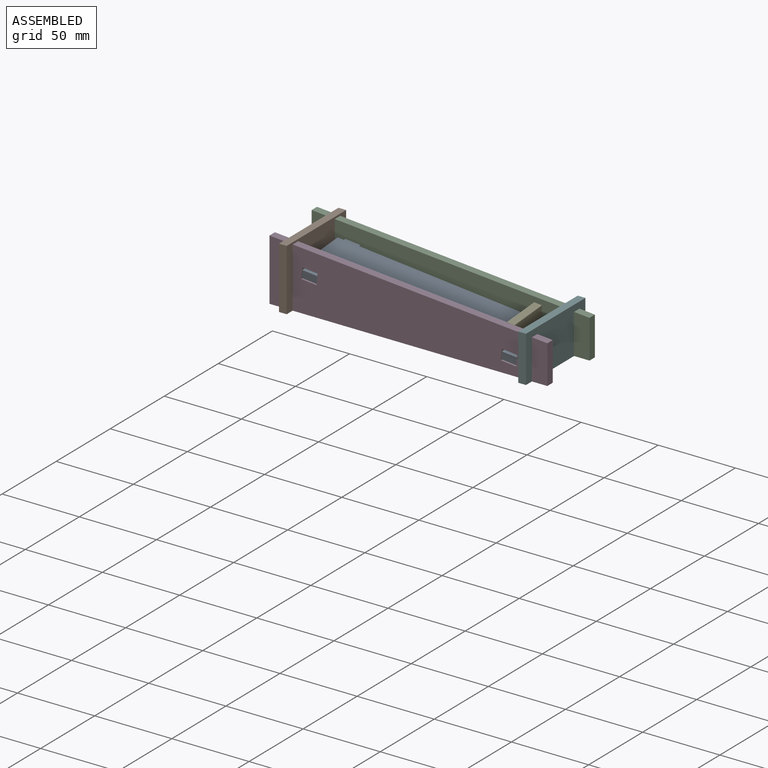
[diagram: assembled view]
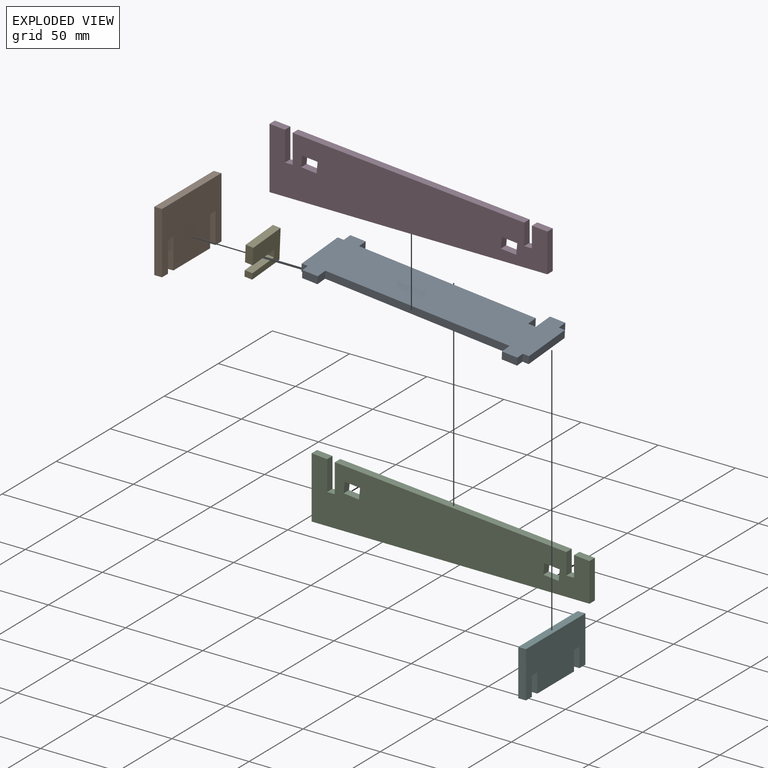
[diagram: exploded view]
GUIDED TOUR — MATED ASSEMBLY (Onshape document 521a86cabb301fe532c7ba72, AutoMate assembly 521a86cabb301fe532c7ba72_5a490117518f062a6a4dbaca_c5bd7c6d9e7b983213a97659_default)

This assembly has 6 components, labeled P0..P5 below (a component is one placed occurrence of a part; the same part can appear more than once), held together by 4 mates. A mate is a constraint between two components; its type names the relative motion it leaves free:
  FASTENED — locks the two components together rigidly (no relative motion).
Axis/direction vectors are unit vectors and 'through' points are millimeter coordinates, both in the assembly's world frame.

MATES
  1. FASTENED "Fastened 1": P3 <-> P1, direction (0.000, 0.000, 1.000) through (-77.50, 0.00, 20.00) mm
  2. FASTENED "Fastened 4": P4 <-> P0, direction (-0.009, -0.996, -0.087) through (57.91, 28.98, 12.65) mm
  3. FASTENED "Fastened 3": P5 <-> P2, direction (0.000, 0.000, -1.000) through (77.50, 39.00, 12.50) mm
  4. FASTENED "Fastened 2": P1 <-> P2, direction (0.000, 0.000, -1.000) through (-77.50, 39.00, 20.00) mm

ASSEMBLY ORDER
  1. P0 — the base component [order heuristic]
  2. P2 — core [order heuristic]
  3. P3 [order verified]
  4. P4 [order verified]
  5. P5 [order verified]
  6. P1 [order verified]
Order-tag legend:
  [order verified] — this step's position reverses a verified removal order: the component was checked to insert without passing through the ones already placed.
  [order heuristic] — the first 2 components form the assembly's core: parts whose collision-free extraction could not be verified, listed in mate-graph order.

Of the 6 components, 6 carry the full construction recipe — the FeatureScript program that regenerates the part's solid from scratch; the rest are supplied as boundary geometry only.
Each toured component is shown spotlighted twice — in the assembled view, then in the exploded view, where a leader line traces a displaced component back to its assembled socket (saturated green if recipe-attached, orange if geometry-only; every other component desaturated gray) — followed by its recipe or geometry summary and the mates that hold it.
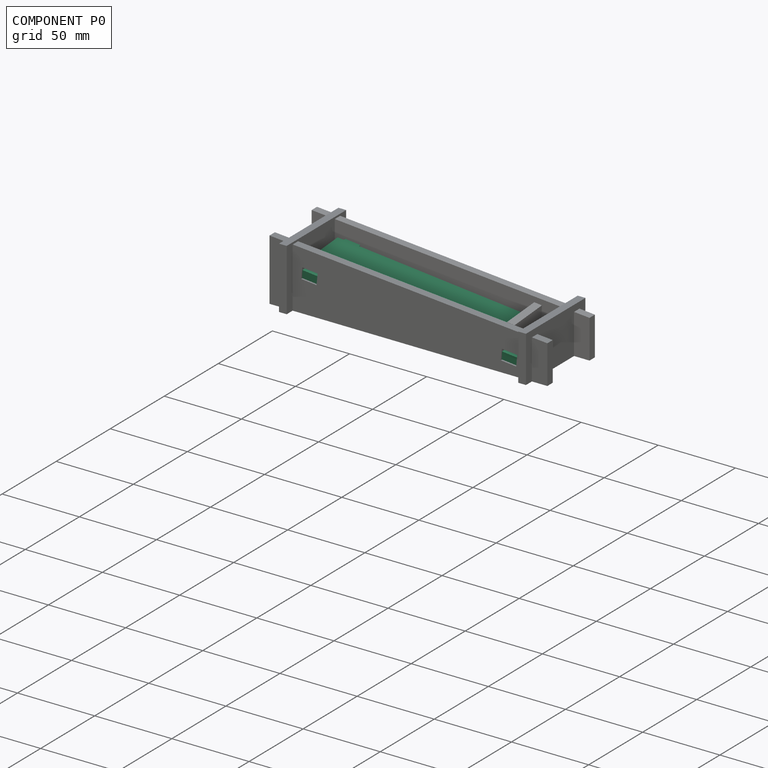
[diagram: component P0 — assembled]
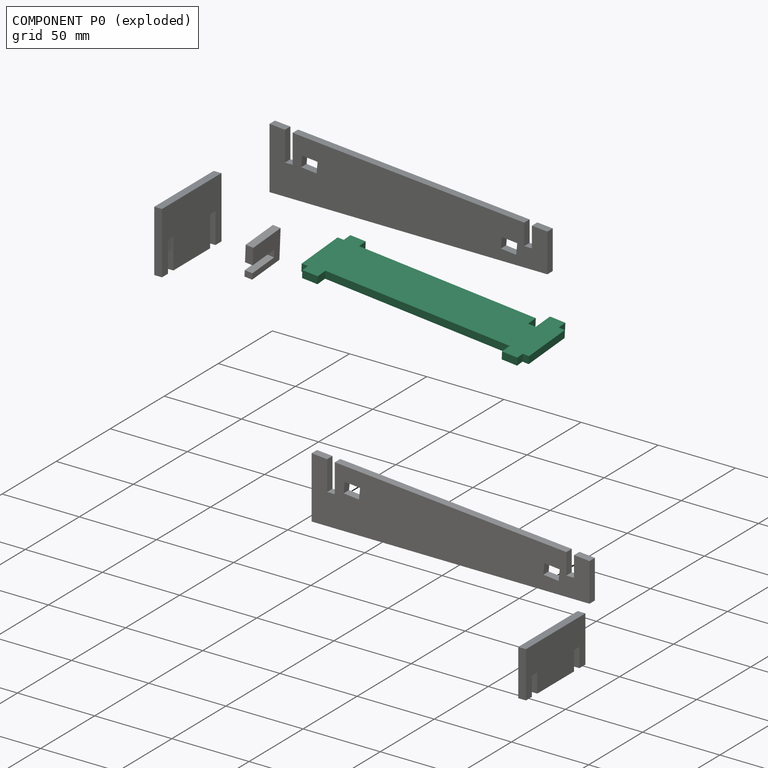
[diagram: component P0 — exploded]
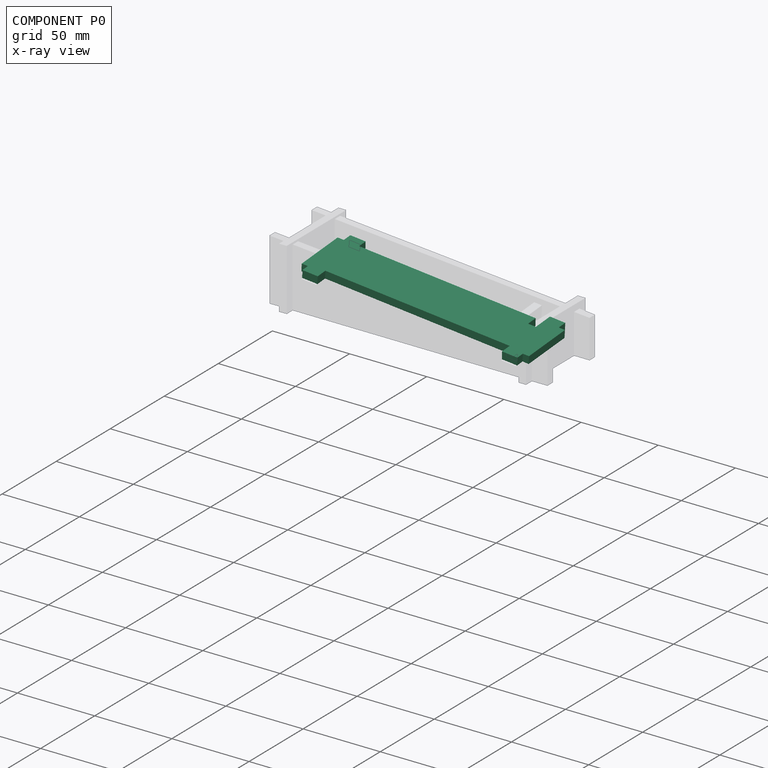
[diagram: component P0 — x-ray view]
COMPONENT P0 — recipe-attached (CADFS 00942265, mesh-verified: the recipe's output STEP matches this component's geometry to below the mesh-comparison resolution (tessellation chordal tolerance ~0.232 mm)).
Held by: FASTENED mate "Fastened 4" to P4.
Construction recipe (FeatureScript — the CAD program that rebuilds this solid; sketch coordinates are in the units given by the * unit suffixes, e.g. mm):

FeatureScript 1540;
import(path : "onshape/std/geometry.fs", version : "1540.0");
import(path : "onshape/std/common.fs", version : "1540.0");
const mm = millimeter;
const VERTEX = EntityType.VERTEX;
const EDGE = EntityType.EDGE;
const FACE = EntityType.FACE;
const BODY = EntityType.BODY;
function v(x, y){return vector(x, y);}
function OD(order){return orderDisambiguation(order);}
function OSD(set){return originalSetDisambiguation(set);}
function TD(topology){return topologyDisambiguation(topology);}
function TDD(query){return trueDependencyDisambiguation(query);}
function sQuery(a, b, c) {return sketchEntityQuery(a, b, c);}

annotation { "Feature Type Name" : "Feature", "Feature Type Description" : "" }
export const myFeature = defineFeature(function(context is Context, id is Id, definition is map)
    precondition{}
    {
        {
            var Q0;
            Q0=qCreatedBy(makeId("Top.planeOp"),FACE);
            var sketch = newSketch(context, id + "F0", { "sketchPlane" : qUnion([Q0])});
            skLineSegment(sketch, "E0.bottom", {"start": v(-70, -15) * mm, "end": v(70, -15) * mm});
            skLineSegment(sketch, "E0.top", {"start": v(-70, 15) * mm, "end": v(70, 15) * mm});
            skLineSegment(sketch, "E0.left", {"start": v(-70, -15) * mm, "end": v(-70, 15) * mm});
            skLineSegment(sketch, "E0.right", {"start": v(70, -15) * mm, "end": v(70, 15) * mm});
            skSolve(sketch);
        }
        {
            var Q0;
            Q0=makeQuery(id+"F0.imprint","IMPRINT",FACE,{"disambiguationData":[TD([[makeQuery(id+"F0.imprint","IMPRINT",EDGE,{"derivedFrom":sQuery(id+"F0.wireOp",EDGE,"E0.bottom")}),1.0]])]});
            extrude(context, id + "F1", {"entities" : qUnion([Q0]), "depth" : 5 * mm, "offsetDistance" : 25 * mm});
        }
        {
            var Q0;
            Q0=makeQuery(id+"F1.opExtrude","CAP_FACE",FACE,{"disambiguationData":[OSD([sQuery(id+"F0.wireOp",EDGE,"E0.bottom"),sQuery(id+"F0.wireOp",EDGE,"E0.top"),sQuery(id+"F0.wireOp",EDGE,"E0.left"),sQuery(id+"F0.wireOp",EDGE,"E0.right")])],"isStart":false});
            var sketch = newSketch(context, id + "F2", { "sketchPlane" : qUnion([Q0])});
            skLineSegment(sketch, "E1.bottom", {"start": v(-70, 15) * mm, "end": v(-60, 15) * mm});
            skLineSegment(sketch, "E1.top", {"start": v(-70, 20) * mm, "end": v(-60, 20) * mm});
            skLineSegment(sketch, "E1.left", {"start": v(-70, 15) * mm, "end": v(-70, 20) * mm});
            skLineSegment(sketch, "E1.right", {"start": v(-60, 15) * mm, "end": v(-60, 20) * mm});
            skLineSegment(sketch, "E2.bottom", {"start": v(60, 15) * mm, "end": v(70, 15) * mm});
            skLineSegment(sketch, "E2.top", {"start": v(60, 20) * mm, "end": v(70, 20) * mm});
            skLineSegment(sketch, "E2.left", {"start": v(60, 15) * mm, "end": v(60, 20) * mm});
            skLineSegment(sketch, "E2.right", {"start": v(70, 15) * mm, "end": v(70, 20) * mm});
            skLineSegment(sketch, "E3.bottom", {"start": v(-70, -24) * mm, "end": v(-60, -24) * mm});
            skLineSegment(sketch, "E3.top", {"start": v(-70, -15) * mm, "end": v(-60, -15) * mm});
            skLineSegment(sketch, "E3.left", {"start": v(-70, -24) * mm, "end": v(-70, -15) * mm});
            skLineSegment(sketch, "E3.right", {"start": v(-60, -24) * mm, "end": v(-60, -15) * mm});
            skLineSegment(sketch, "E4.bottom", {"start": v(60, -24) * mm, "end": v(70, -24) * mm});
            skLineSegment(sketch, "E4.top", {"start": v(60, -15) * mm, "end": v(70, -15) * mm});
            skLineSegment(sketch, "E4.left", {"start": v(60, -24) * mm, "end": v(60, -15) * mm});
            skLineSegment(sketch, "E4.right", {"start": v(70, -24) * mm, "end": v(70, -15) * mm});
            skSolve(sketch);
        }
        {
            var Q0;
            Q0=makeQuery(id+"F2.imprint","IMPRINT",FACE,{"disambiguationData":[TD([[makeQuery(id+"F2.imprint","IMPRINT",EDGE,{"derivedFrom":sQuery(id+"F2.wireOp",EDGE,"E2.bottom")}),1.0]])]});
            var Q1;
            Q1=makeQuery(id+"F2.imprint","IMPRINT",FACE,{"disambiguationData":[TD([[makeQuery(id+"F2.imprint","IMPRINT",EDGE,{"derivedFrom":sQuery(id+"F2.wireOp",EDGE,"E1.bottom")}),1.0]])]});
            var Q2;
            Q2=makeQuery(id+"F2.imprint","IMPRINT",FACE,{"disambiguationData":[TD([[makeQuery(id+"F2.imprint","IMPRINT",EDGE,{"derivedFrom":sQuery(id+"F2.wireOp",EDGE,"E3.bottom")}),1.0]])]});
            var Q3;
            Q3=makeQuery(id+"F2.imprint","IMPRINT",FACE,{"disambiguationData":[TD([[makeQuery(id+"F2.imprint","IMPRINT",EDGE,{"derivedFrom":sQuery(id+"F2.wireOp",EDGE,"E4.bottom")}),1.0]])]});
            extrude(context, id + "F3", {"entities" : qUnion([Q0, Q1, Q2, Q3]), "oppositeDirection" : true, "depth" : 5 * mm, "offsetDistance" : 25 * mm});
        }
        {
            var Q0;
            Q0=makeQuery(id+"F3.opExtrude","SWEPT_BODY",BODY,{"disambiguationData":[OSD([sQuery(id+"F2.wireOp",EDGE,"E1.bottom"),sQuery(id+"F2.wireOp",EDGE,"E1.top"),sQuery(id+"F2.wireOp",EDGE,"E1.left"),sQuery(id+"F2.wireOp",EDGE,"E1.right")])]});
            var Q1;
            Q1=makeQuery(id+"F3.opExtrude","SWEPT_BODY",BODY,{"disambiguationData":[OSD([sQuery(id+"F2.wireOp",EDGE,"E2.bottom"),sQuery(id+"F2.wireOp",EDGE,"E2.top"),sQuery(id+"F2.wireOp",EDGE,"E2.left"),sQuery(id+"F2.wireOp",EDGE,"E2.right")])]});
            var Q2;
            Q2=makeQuery(id+"F3.opExtrude","SWEPT_BODY",BODY,{"disambiguationData":[OSD([sQuery(id+"F2.wireOp",EDGE,"E3.bottom"),sQuery(id+"F2.wireOp",EDGE,"E3.top"),sQuery(id+"F2.wireOp",EDGE,"E3.left"),sQuery(id+"F2.wireOp",EDGE,"E3.right")])]});
            var Q3;
            Q3=makeQuery(id+"F3.opExtrude","SWEPT_BODY",BODY,{"disambiguationData":[OSD([sQuery(id+"F2.wireOp",EDGE,"E4.bottom"),sQuery(id+"F2.wireOp",EDGE,"E4.top"),sQuery(id+"F2.wireOp",EDGE,"E4.left"),sQuery(id+"F2.wireOp",EDGE,"E4.right")])]});
            var Q4;
            Q4=makeQuery(id+"F1.opExtrude","SWEPT_BODY",BODY,{"disambiguationData":[OSD([sQuery(id+"F0.wireOp",EDGE,"E0.bottom"),sQuery(id+"F0.wireOp",EDGE,"E0.top"),sQuery(id+"F0.wireOp",EDGE,"E0.left"),sQuery(id+"F0.wireOp",EDGE,"E0.right")])]});
            booleanBodies(context, id + "F4", {"operationType" : BooleanOperationType.UNION, "tools" : qUnion([Q0, Q1, Q2, Q3, Q4])});
        }
        {
            var Q0;
            Q0=makeQuery(id+"F4.opBoolean","MERGE",FACE,{"derivedFrom":[makeQuery(id+"F1.opExtrude","CAP_FACE",FACE,{"disambiguationData":[OSD([sQuery(id+"F0.wireOp",EDGE,"E0.bottom"),sQuery(id+"F0.wireOp",EDGE,"E0.top"),sQuery(id+"F0.wireOp",EDGE,"E0.left"),sQuery(id+"F0.wireOp",EDGE,"E0.right")])],"isStart":false}),makeQuery(id+"F3.opExtrude","CAP_FACE",FACE,{"disambiguationData":[OSD([sQuery(id+"F2.wireOp",EDGE,"E1.bottom"),sQuery(id+"F2.wireOp",EDGE,"E1.top"),sQuery(id+"F2.wireOp",EDGE,"E1.left"),sQuery(id+"F2.wireOp",EDGE,"E1.right")])],"isStart":true}),makeQuery(id+"F3.opExtrude","CAP_FACE",FACE,{"disambiguationData":[OSD([sQuery(id+"F2.wireOp",EDGE,"E2.bottom"),sQuery(id+"F2.wireOp",EDGE,"E2.top"),sQuery(id+"F2.wireOp",EDGE,"E2.left"),sQuery(id+"F2.wireOp",EDGE,"E2.right")])],"isStart":true}),makeQuery(id+"F3.opExtrude","CAP_FACE",FACE,{"disambiguationData":[OSD([sQuery(id+"F2.wireOp",EDGE,"E3.bottom"),sQuery(id+"F2.wireOp",EDGE,"E3.top"),sQuery(id+"F2.wireOp",EDGE,"E3.left"),sQuery(id+"F2.wireOp",EDGE,"E3.right")])],"isStart":true}),makeQuery(id+"F3.opExtrude","CAP_FACE",FACE,{"disambiguationData":[OSD([sQuery(id+"F2.wireOp",EDGE,"E4.bottom"),sQuery(id+"F2.wireOp",EDGE,"E4.top"),sQuery(id+"F2.wireOp",EDGE,"E4.left"),sQuery(id+"F2.wireOp",EDGE,"E4.right")])],"isStart":true})]});
            var sketch = newSketch(context, id + "F5", { "sketchPlane" : qUnion([Q0])});
            skLineSegment(sketch, "E5.bottom", {"start": v(55, 7) * mm, "end": v(60, 7) * mm});
            skLineSegment(sketch, "E5.top", {"start": v(55, 15) * mm, "end": v(60, 15) * mm});
            skLineSegment(sketch, "E5.left", {"start": v(55, 7) * mm, "end": v(55, 15) * mm});
            skLineSegment(sketch, "E5.right", {"start": v(60, 7) * mm, "end": v(60, 15) * mm});
            skSolve(sketch);
        }
        {
            var Q0;
            Q0=makeQuery(id+"F5.imprint","IMPRINT",FACE,{"disambiguationData":[TD([[makeQuery(id+"F5.imprint","IMPRINT",EDGE,{"derivedFrom":sQuery(id+"F5.wireOp",EDGE,"RuR1eCBN-IUNf-TQCT-UWBD-UVoxSlnhnZJr.bottom")}),1.0]])]});
            var Q1;
            Q1=makeQuery(id+"F5.imprint","IMPRINT",FACE,{"disambiguationData":[TD([[makeQuery(id+"F5.imprint","IMPRINT",EDGE,{"derivedFrom":sQuery(id+"F5.wireOp",EDGE,"E5.bottom")}),1.0]])]});
            extrude(context, id + "F6", {"entities" : qUnion([Q0, Q1]), "operationType" : NewBodyOperationType.REMOVE, "oppositeDirection" : true, "depth" : 25 * mm, "offsetDistance" : 25 * mm});
        }
        {
            var Q0;
            Q0=makeQuery(id+"F4.opBoolean","MERGE",FACE,{"derivedFrom":[makeQuery(id+"F1.opExtrude","CAP_FACE",FACE,{"disambiguationData":[OSD([sQuery(id+"F0.wireOp",EDGE,"E0.bottom"),sQuery(id+"F0.wireOp",EDGE,"E0.top"),sQuery(id+"F0.wireOp",EDGE,"E0.left"),sQuery(id+"F0.wireOp",EDGE,"E0.right")])],"isStart":false}),makeQuery(id+"F3.opExtrude","CAP_FACE",FACE,{"disambiguationData":[OSD([sQuery(id+"F2.wireOp",EDGE,"E1.bottom"),sQuery(id+"F2.wireOp",EDGE,"E1.top"),sQuery(id+"F2.wireOp",EDGE,"E1.left"),sQuery(id+"F2.wireOp",EDGE,"E1.right")])],"isStart":true}),makeQuery(id+"F3.opExtrude","CAP_FACE",FACE,{"disambiguationData":[OSD([sQuery(id+"F2.wireOp",EDGE,"E2.bottom"),sQuery(id+"F2.wireOp",EDGE,"E2.top"),sQuery(id+"F2.wireOp",EDGE,"E2.left"),sQuery(id+"F2.wireOp",EDGE,"E2.right")])],"isStart":true}),makeQuery(id+"F3.opExtrude","CAP_FACE",FACE,{"disambiguationData":[OSD([sQuery(id+"F2.wireOp",EDGE,"E3.bottom"),sQuery(id+"F2.wireOp",EDGE,"E3.top"),sQuery(id+"F2.wireOp",EDGE,"E3.left"),sQuery(id+"F2.wireOp",EDGE,"E3.right")])],"isStart":true}),makeQuery(id+"F3.opExtrude","CAP_FACE",FACE,{"disambiguationData":[OSD([sQuery(id+"F2.wireOp",EDGE,"E4.bottom"),sQuery(id+"F2.wireOp",EDGE,"E4.top"),sQuery(id+"F2.wireOp",EDGE,"E4.left"),sQuery(id+"F2.wireOp",EDGE,"E4.right")])],"isStart":true})]});
            var sketch = newSketch(context, id + "F7", { "sketchPlane" : qUnion([Q0])});
            skLineSegment(sketch, "E6.bottom", {"start": v(-60, -15) * mm, "end": v(60, -15) * mm});
            skLineSegment(sketch, "E6.top", {"start": v(-60, -17) * mm, "end": v(60, -17) * mm});
            skLineSegment(sketch, "E6.left", {"start": v(-60, -15) * mm, "end": v(-60, -17) * mm});
            skLineSegment(sketch, "E6.right", {"start": v(60, -15) * mm, "end": v(60, -17) * mm});
            skSolve(sketch);
        }
        {
            var Q0;
            Q0=makeQuery(id+"F7.imprint","IMPRINT",FACE,{"disambiguationData":[TD([[makeQuery(id+"F7.imprint","IMPRINT",EDGE,{"derivedFrom":sQuery(id+"F7.wireOp",EDGE,"E6.bottom")}),-1.0]])]});
            extrude(context, id + "F8", {"entities" : qUnion([Q0]), "operationType" : NewBodyOperationType.ADD, "oppositeDirection" : true, "depth" : 5 * mm, "offsetDistance" : 25 * mm});
        }
        {
            var Q0;
            Q0=makeQuery(id+"F12.boolean.opBoolean","MERGE",FACE,{"derivedFrom":[makeQuery(id+"F8.boolean.opBoolean","MERGE",FACE,{"derivedFrom":[makeQuery(id+"F4.opBoolean","MERGE",FACE,{"derivedFrom":[makeQuery(id+"F1.opExtrude","CAP_FACE",FACE,{"disambiguationData":[OSD([sQuery(id+"F0.wireOp",EDGE,"E0.bottom"),sQuery(id+"F0.wireOp",EDGE,"E0.top"),sQuery(id+"F0.wireOp",EDGE,"E0.left"),sQuery(id+"F0.wireOp",EDGE,"E0.right")])],"isStart":false}),makeQuery(id+"F3.opExtrude","CAP_FACE",FACE,{"disambiguationData":[OSD([sQuery(id+"F2.wireOp",EDGE,"E1.bottom"),sQuery(id+"F2.wireOp",EDGE,"E1.top"),sQuery(id+"F2.wireOp",EDGE,"E1.left"),sQuery(id+"F2.wireOp",EDGE,"E1.right")])],"isStart":true}),makeQuery(id+"F3.opExtrude","CAP_FACE",FACE,{"disambiguationData":[OSD([sQuery(id+"F2.wireOp",EDGE,"E2.bottom"),sQuery(id+"F2.wireOp",EDGE,"E2.top"),sQuery(id+"F2.wireOp",EDGE,"E2.left"),sQuery(id+"F2.wireOp",EDGE,"E2.right")])],"isStart":true}),makeQuery(id+"F3.opExtrude","CAP_FACE",FACE,{"disambiguationData":[OSD([sQuery(id+"F2.wireOp",EDGE,"E3.bottom"),sQuery(id+"F2.wireOp",EDGE,"E3.top"),sQuery(id+"F2.wireOp",EDGE,"E3.left"),sQuery(id+"F2.wireOp",EDGE,"E3.right")])],"isStart":true}),makeQuery(id+"F3.opExtrude","CAP_FACE",FACE,{"disambiguationData":[OSD([sQuery(id+"F2.wireOp",EDGE,"E4.bottom"),sQuery(id+"F2.wireOp",EDGE,"E4.top"),sQuery(id+"F2.wireOp",EDGE,"E4.left"),sQuery(id+"F2.wireOp",EDGE,"E4.right")])],"isStart":true})]}),makeQuery(id+"F8.opExtrude","CAP_FACE",FACE,{"disambiguationData":[OSD([sQuery(id+"F7.wireOp",EDGE,"E6.bottom"),sQuery(id+"F7.wireOp",EDGE,"E6.top"),sQuery(id+"F7.wireOp",EDGE,"E6.left"),sQuery(id+"F7.wireOp",EDGE,"E6.right")])],"isStart":true})]}),makeQuery(id+"F12.opExtrude","CAP_FACE",FACE,{"disambiguationData":[OSD([sQuery(id+"F11.wireOp",EDGE,"E8.bottom"),sQuery(id+"F11.wireOp",EDGE,"E8.top"),sQuery(id+"F11.wireOp",EDGE,"E8.left"),sQuery(id+"F11.wireOp",EDGE,"E8.right")])],"isStart":false}),makeQuery(id+"F12.opExtrude","CAP_FACE",FACE,{"disambiguationData":[OSD([sQuery(id+"F11.wireOp",EDGE,"E9.bottom"),sQuery(id+"F11.wireOp",EDGE,"E9.top"),sQuery(id+"F11.wireOp",EDGE,"E9.left"),sQuery(id+"F11.wireOp",EDGE,"E9.right")])],"isStart":false})]});
            var sketch = newSketch(context, id + "F9", { "sketchPlane" : qUnion([Q0])});
            skLineSegment(sketch, "E7.bottom", {"start": v(-60, 15) * mm, "end": v(55, 15) * mm});
            skLineSegment(sketch, "E7.top", {"start": v(-60, 14) * mm, "end": v(55, 14) * mm});
            skLineSegment(sketch, "E7.left", {"start": v(-60, 15) * mm, "end": v(-60, 14) * mm});
            skLineSegment(sketch, "E7.right", {"start": v(55, 15) * mm, "end": v(55, 14) * mm});
            skSolve(sketch);
        }
        {
            var Q0;
            Q0=makeQuery(id+"F9.imprint","IMPRINT",FACE,{"disambiguationData":[TD([[makeQuery(id+"F9.imprint","IMPRINT",EDGE,{"derivedFrom":sQuery(id+"F9.wireOp",EDGE,"E7.bottom")}),-1.0]])]});
            extrude(context, id + "F10", {"entities" : qUnion([Q0]), "operationType" : NewBodyOperationType.REMOVE, "oppositeDirection" : true, "depth" : 25 * mm, "offsetDistance" : 25 * mm});
        }
        {
            var Q0;
            Q0=qCreatedBy(makeId("Top.planeOp"),FACE);
            var sketch = newSketch(context, id + "F11", { "sketchPlane" : qUnion([Q0])});
            skLineSegment(sketch, "E8.bottom", {"start": v(-70, -19) * mm, "end": v(-74, -19) * mm});
            skLineSegment(sketch, "E8.top", {"start": v(-70, 14) * mm, "end": v(-74, 14) * mm});
            skLineSegment(sketch, "E8.left", {"start": v(-70, -19) * mm, "end": v(-70, 14) * mm});
            skLineSegment(sketch, "E8.right", {"start": v(-74, -19) * mm, "end": v(-74, 14) * mm});
            skPoint(sketch, "E8.middle", {"position": v(-72, 0) * mm});
            skLineSegment(sketch, "E9.bottom", {"start": v(74, -19) * mm, "end": v(70, -19) * mm});
            skLineSegment(sketch, "E9.top", {"start": v(74, 14) * mm, "end": v(70, 14) * mm});
            skLineSegment(sketch, "E9.left", {"start": v(74, -19) * mm, "end": v(74, 14) * mm});
            skLineSegment(sketch, "E9.right", {"start": v(70, -19) * mm, "end": v(70, 14) * mm});
            skPoint(sketch, "E9.middle", {"position": v(72, 0) * mm});
            skSolve(sketch);
        }
        {
            var Q0;
            Q0=makeQuery(id+"F11.imprint","IMPRINT",FACE,{"disambiguationData":[TD([[makeQuery(id+"F11.imprint","IMPRINT",EDGE,{"derivedFrom":sQuery(id+"F11.wireOp",EDGE,"E8.bottom")}),-1.0]])]});
            var Q1;
            Q1=makeQuery(id+"F11.imprint","IMPRINT",FACE,{"disambiguationData":[TD([[makeQuery(id+"F11.imprint","IMPRINT",EDGE,{"derivedFrom":sQuery(id+"F11.wireOp",EDGE,"E9.bottom")}),-1.0]])]});
            extrude(context, id + "F12", {"entities" : qUnion([Q0, Q1]), "operationType" : NewBodyOperationType.ADD, "depth" : 5 * mm, "offsetDistance" : 25 * mm});
        }
    });
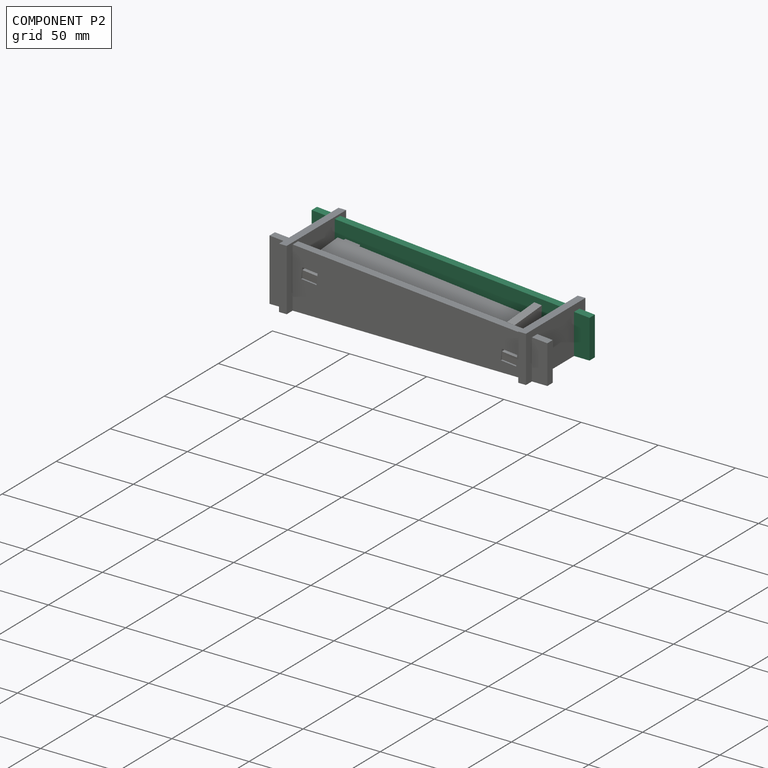
[diagram: component P2 — assembled]
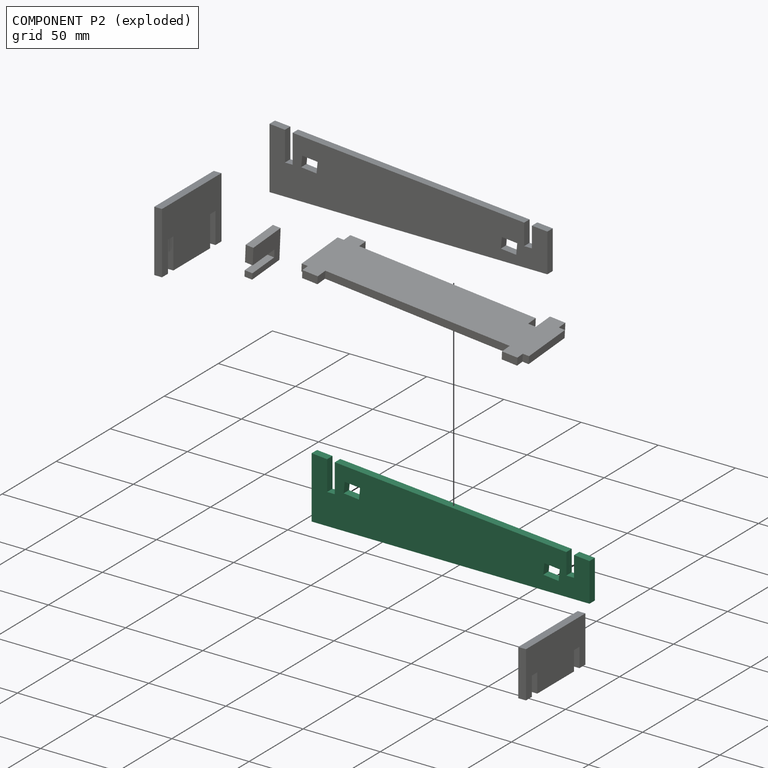
[diagram: component P2 — exploded]
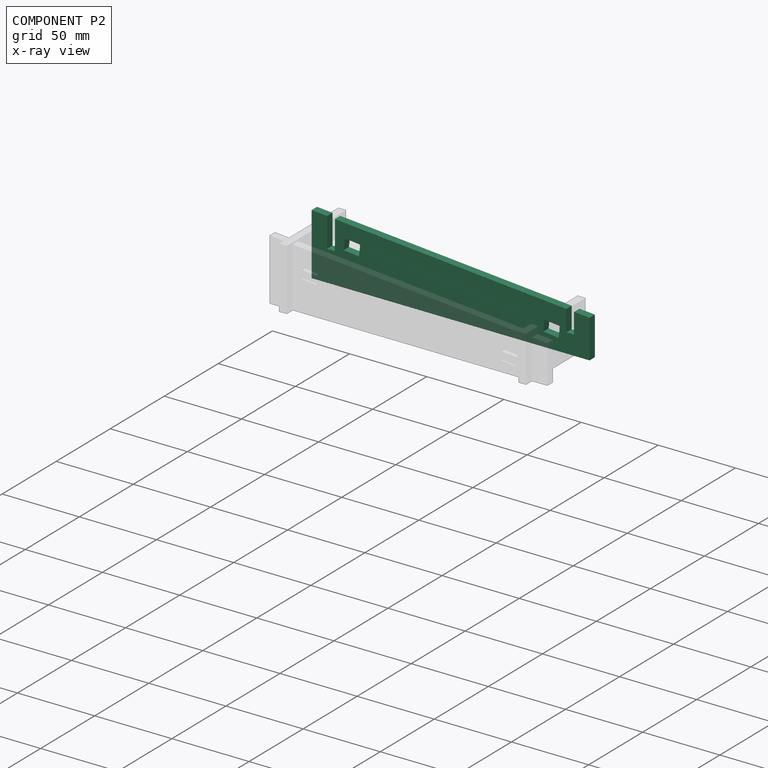
[diagram: component P2 — x-ray view]
COMPONENT P2 — recipe-attached (CADFS 00942260, mesh-verified: the recipe's output STEP matches this component's geometry to below the mesh-comparison resolution (tessellation chordal tolerance ~0.277 mm)).
Held by: FASTENED mate "Fastened 3" to P5; FASTENED mate "Fastened 2" to P1.
Construction recipe (FeatureScript — the CAD program that rebuilds this solid; sketch coordinates are in the units given by the * unit suffixes, e.g. mm):

FeatureScript 1540;
import(path : "onshape/std/geometry.fs", version : "1540.0");
import(path : "onshape/std/common.fs", version : "1540.0");
const mm = millimeter;
const VERTEX = EntityType.VERTEX;
const EDGE = EntityType.EDGE;
const FACE = EntityType.FACE;
const BODY = EntityType.BODY;
function v(x, y){return vector(x, y);}
function OD(order){return orderDisambiguation(order);}
function OSD(set){return originalSetDisambiguation(set);}
function TD(topology){return topologyDisambiguation(topology);}
function TDD(query){return trueDependencyDisambiguation(query);}
function sQuery(a, b, c) {return sketchEntityQuery(a, b, c);}

annotation { "Feature Type Name" : "Feature", "Feature Type Description" : "" }
export const myFeature = defineFeature(function(context is Context, id is Id, definition is map)
    precondition{}
    {
        {
            var Q0;
            Q0=qCreatedBy(makeId("Top.planeOp"),FACE);
            var sketch = newSketch(context, id + "F0", { "sketchPlane" : qUnion([Q0])});
            skLineSegment(sketch, "E0.bottom", {"start": v(-90, 20) * mm, "end": v(90, 20) * mm});
            skLineSegment(sketch, "E0.top", {"start": v(-90, -20) * mm, "end": v(90, -20) * mm});
            skLineSegment(sketch, "E0.left", {"start": v(-90, 20) * mm, "end": v(-90, -20) * mm});
            skLineSegment(sketch, "E0.right", {"start": v(90, 20) * mm, "end": v(90, -20) * mm});
            skSolve(sketch);
        }
        {
            var Q0;
            Q0=makeQuery(id+"F0.imprint","IMPRINT",FACE,{"disambiguationData":[TD([[makeQuery(id+"F0.imprint","IMPRINT",EDGE,{"derivedFrom":sQuery(id+"F0.wireOp",EDGE,"E0.bottom")}),-1.0]])]});
            extrude(context, id + "F1", {"entities" : qUnion([Q0]), "depth" : 5 * mm, "offsetDistance" : 25 * mm});
        }
        {
            var Q0;
            Q0=makeQuery(id+"F1.opExtrude","CAP_FACE",FACE,{"disambiguationData":[OSD([sQuery(id+"F0.wireOp",EDGE,"E0.bottom"),sQuery(id+"F0.wireOp",EDGE,"E0.top"),sQuery(id+"F0.wireOp",EDGE,"E0.left"),sQuery(id+"F0.wireOp",EDGE,"E0.right")])],"isStart":false});
            var sketch = newSketch(context, id + "F2", { "sketchPlane" : qUnion([Q0])});
            skLineSegment(sketch, "E1", {"start": v(-90, 20) * mm, "end": v(90, 20) * mm});
            skLineSegment(sketch, "E2", {"start": v(90, 20) * mm, "end": v(90, 5) * mm});
            skLineSegment(sketch, "E3", {"start": v(90, 5) * mm, "end": v(-90, 20) * mm});
            skSolve(sketch);
        }
        {
            var Q0;
            Q0=makeQuery(id+"F2.imprint","IMPRINT",FACE,{"disambiguationData":[TD([[makeQuery(id+"F2.imprint","IMPRINT",EDGE,{"derivedFrom":sQuery(id+"F2.wireOp",EDGE,"E1")}),-1.0]])]});
            extrude(context, id + "F3", {"entities" : qUnion([Q0]), "operationType" : NewBodyOperationType.REMOVE, "oppositeDirection" : true, "depth" : 25 * mm, "offsetDistance" : 25 * mm});
        }
        {
            var Q0;
            Q0=makeQuery(id+"F1.opExtrude","CAP_FACE",FACE,{"disambiguationData":[OSD([sQuery(id+"F0.wireOp",EDGE,"E0.bottom"),sQuery(id+"F0.wireOp",EDGE,"E0.top"),sQuery(id+"F0.wireOp",EDGE,"E0.left"),sQuery(id+"F0.wireOp",EDGE,"E0.right")])],"isStart":false});
            var sketch = newSketch(context, id + "F4", { "sketchPlane" : qUnion([Q0])});
            skLineSegment(sketch, "E4", {"start": v(-80, 19.17) * mm, "end": v(-80, 0) * mm});
            skLineSegment(sketch, "E5", {"start": v(-80, 0) * mm, "end": v(-75, 0) * mm});
            skLineSegment(sketch, "E6", {"start": v(-75, 0) * mm, "end": v(-75, 18.75) * mm});
            skLineSegment(sketch, "E7", {"start": v(-75, 18.75) * mm, "end": v(-80, 19.17) * mm});
            skLineSegment(sketch, "E8", {"start": v(75, 6.25) * mm, "end": v(75, -7.5) * mm});
            skLineSegment(sketch, "E9", {"start": v(75, -7.5) * mm, "end": v(80, -7.5) * mm});
            skLineSegment(sketch, "E10", {"start": v(80, -7.5) * mm, "end": v(80, 5.83) * mm});
            skLineSegment(sketch, "E11", {"start": v(80, 5.83) * mm, "end": v(75, 6.25) * mm});
            skSolve(sketch);
        }
        {
            var Q0;
            Q0=makeQuery(id+"F4.imprint","IMPRINT",FACE,{"disambiguationData":[TD([[makeQuery(id+"F4.imprint","IMPRINT",EDGE,{"derivedFrom":sQuery(id+"F4.wireOp",EDGE,"E4")}),1.0]])]});
            var Q1;
            Q1=makeQuery(id+"F4.imprint","IMPRINT",FACE,{"disambiguationData":[TD([[makeQuery(id+"F4.imprint","IMPRINT",EDGE,{"derivedFrom":sQuery(id+"F4.wireOp",EDGE,"E8")}),1.0]])]});
            extrude(context, id + "F5", {"entities" : qUnion([Q0, Q1]), "operationType" : NewBodyOperationType.REMOVE, "oppositeDirection" : true, "depth" : 25 * mm, "offsetDistance" : 25 * mm});
        }
        {
            var Q0;
            Q0=makeQuery(id+"F1.opExtrude","CAP_FACE",FACE,{"disambiguationData":[OSD([sQuery(id+"F0.wireOp",EDGE,"E0.bottom"),sQuery(id+"F0.wireOp",EDGE,"E0.top"),sQuery(id+"F0.wireOp",EDGE,"E0.left"),sQuery(id+"F0.wireOp",EDGE,"E0.right")])],"isStart":true});
            var sketch = newSketch(context, id + "F6", { "sketchPlane" : qUnion([Q0])});
            skLineSegment(sketch, "E12.bottom", {"start": v(-69.3, -2.06) * mm, "end": v(-59.34, -1.06) * mm});
            skLineSegment(sketch, "E12.top", {"start": v(-68.59, -9.02) * mm, "end": v(-58.64, -8.02) * mm});
            skLineSegment(sketch, "E12.left", {"start": v(-69.3, -2.06) * mm, "end": v(-68.59, -9.02) * mm});
            skLineSegment(sketch, "E12.right", {"start": v(-59.34, -1.06) * mm, "end": v(-58.64, -8.02) * mm});
            skLineSegment(sketch, "E13.bottom", {"start": v(60.05, 11) * mm, "end": v(70, 12) * mm});
            skLineSegment(sketch, "E13.top", {"start": v(60.75, 4.03) * mm, "end": v(70.7, 5.04) * mm});
            skLineSegment(sketch, "E13.left", {"start": v(60.05, 11) * mm, "end": v(60.75, 4.03) * mm});
            skLineSegment(sketch, "E13.right", {"start": v(70, 12) * mm, "end": v(70.7, 5.04) * mm});
            skSolve(sketch);
        }
        {
            var Q0;
            Q0=makeQuery(id+"F6.imprint","IMPRINT",FACE,{"disambiguationData":[TD([[makeQuery(id+"F6.imprint","IMPRINT",EDGE,{"derivedFrom":sQuery(id+"F6.wireOp",EDGE,"E12.bottom")}),-1.0]])]});
            var Q1;
            Q1=makeQuery(id+"F6.imprint","IMPRINT",FACE,{"disambiguationData":[TD([[makeQuery(id+"F6.imprint","IMPRINT",EDGE,{"derivedFrom":sQuery(id+"F6.wireOp",EDGE,"E13.bottom")}),-1.0]])]});
            extrude(context, id + "F7", {"entities" : qUnion([Q0, Q1]), "operationType" : NewBodyOperationType.REMOVE, "oppositeDirection" : true, "depth" : 25 * mm, "offsetDistance" : 25 * mm});
        }
    });
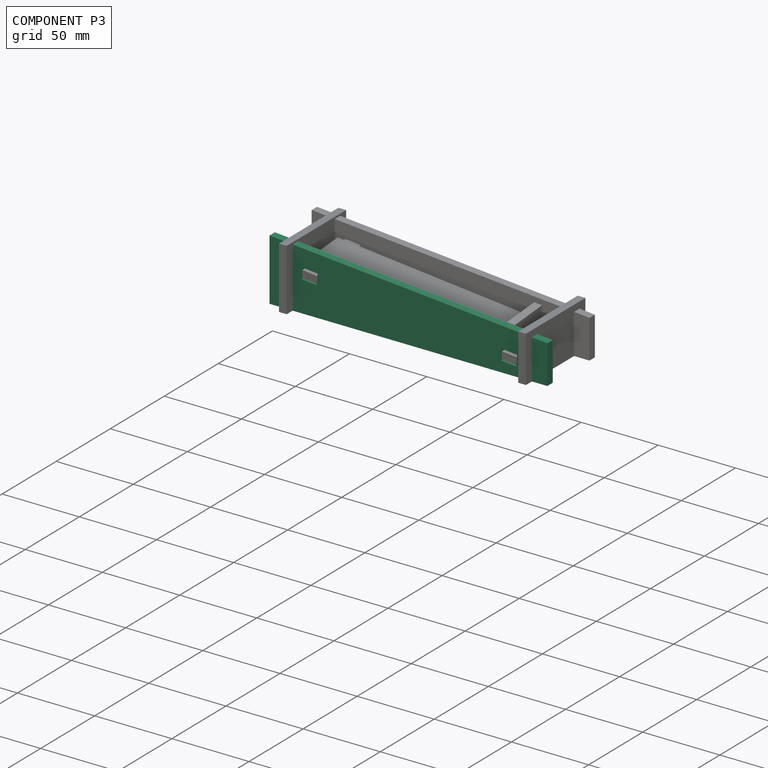
[diagram: component P3 — assembled]
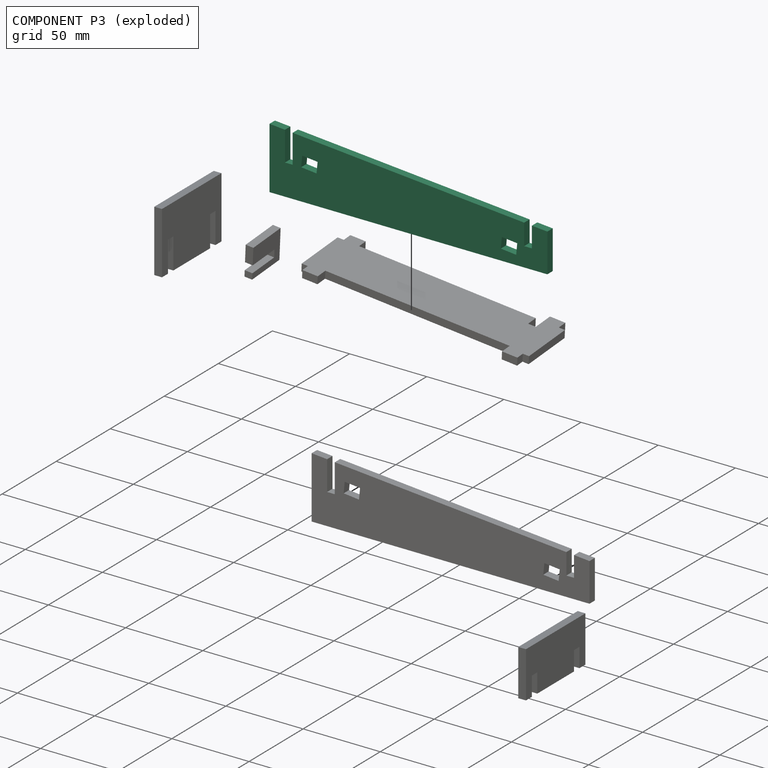
[diagram: component P3 — exploded]
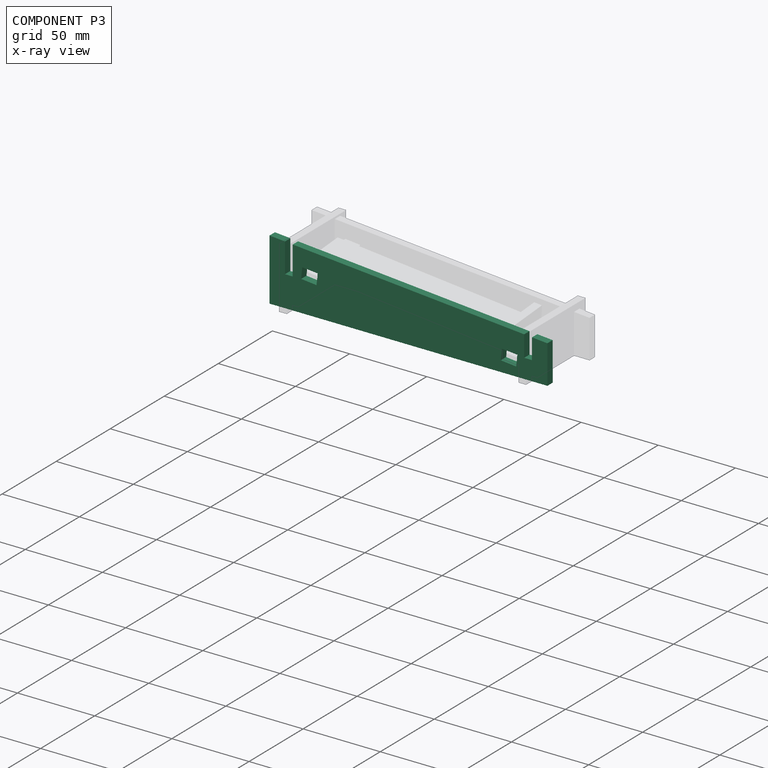
[diagram: component P3 — x-ray view]
COMPONENT P3 — recipe-attached (CADFS 00942260, mesh-verified: the recipe's output STEP matches this component's geometry to below the mesh-comparison resolution (tessellation chordal tolerance ~0.277 mm)).
Held by: FASTENED mate "Fastened 1" to P1.
Construction recipe (FeatureScript — the CAD program that rebuilds this solid; sketch coordinates are in the units given by the * unit suffixes, e.g. mm):

FeatureScript 1540;
import(path : "onshape/std/geometry.fs", version : "1540.0");
import(path : "onshape/std/common.fs", version : "1540.0");
const mm = millimeter;
const VERTEX = EntityType.VERTEX;
const EDGE = EntityType.EDGE;
const FACE = EntityType.FACE;
const BODY = EntityType.BODY;
function v(x, y){return vector(x, y);}
function OD(order){return orderDisambiguation(order);}
function OSD(set){return originalSetDisambiguation(set);}
function TD(topology){return topologyDisambiguation(topology);}
function TDD(query){return trueDependencyDisambiguation(query);}
function sQuery(a, b, c) {return sketchEntityQuery(a, b, c);}

annotation { "Feature Type Name" : "Feature", "Feature Type Description" : "" }
export const myFeature = defineFeature(function(context is Context, id is Id, definition is map)
    precondition{}
    {
        {
            var Q0;
            Q0=qCreatedBy(makeId("Top.planeOp"),FACE);
            var sketch = newSketch(context, id + "F0", { "sketchPlane" : qUnion([Q0])});
            skLineSegment(sketch, "E0.bottom", {"start": v(-90, 20) * mm, "end": v(90, 20) * mm});
            skLineSegment(sketch, "E0.top", {"start": v(-90, -20) * mm, "end": v(90, -20) * mm});
            skLineSegment(sketch, "E0.left", {"start": v(-90, 20) * mm, "end": v(-90, -20) * mm});
            skLineSegment(sketch, "E0.right", {"start": v(90, 20) * mm, "end": v(90, -20) * mm});
            skSolve(sketch);
        }
        {
            var Q0;
            Q0=makeQuery(id+"F0.imprint","IMPRINT",FACE,{"disambiguationData":[TD([[makeQuery(id+"F0.imprint","IMPRINT",EDGE,{"derivedFrom":sQuery(id+"F0.wireOp",EDGE,"E0.bottom")}),-1.0]])]});
            extrude(context, id + "F1", {"entities" : qUnion([Q0]), "depth" : 5 * mm, "offsetDistance" : 25 * mm});
        }
        {
            var Q0;
            Q0=makeQuery(id+"F1.opExtrude","CAP_FACE",FACE,{"disambiguationData":[OSD([sQuery(id+"F0.wireOp",EDGE,"E0.bottom"),sQuery(id+"F0.wireOp",EDGE,"E0.top"),sQuery(id+"F0.wireOp",EDGE,"E0.left"),sQuery(id+"F0.wireOp",EDGE,"E0.right")])],"isStart":false});
            var sketch = newSketch(context, id + "F2", { "sketchPlane" : qUnion([Q0])});
            skLineSegment(sketch, "E1", {"start": v(-90, 20) * mm, "end": v(90, 20) * mm});
            skLineSegment(sketch, "E2", {"start": v(90, 20) * mm, "end": v(90, 5) * mm});
            skLineSegment(sketch, "E3", {"start": v(90, 5) * mm, "end": v(-90, 20) * mm});
            skSolve(sketch);
        }
        {
            var Q0;
            Q0=makeQuery(id+"F2.imprint","IMPRINT",FACE,{"disambiguationData":[TD([[makeQuery(id+"F2.imprint","IMPRINT",EDGE,{"derivedFrom":sQuery(id+"F2.wireOp",EDGE,"E1")}),-1.0]])]});
            extrude(context, id + "F3", {"entities" : qUnion([Q0]), "operationType" : NewBodyOperationType.REMOVE, "oppositeDirection" : true, "depth" : 25 * mm, "offsetDistance" : 25 * mm});
        }
        {
            var Q0;
            Q0=makeQuery(id+"F1.opExtrude","CAP_FACE",FACE,{"disambiguationData":[OSD([sQuery(id+"F0.wireOp",EDGE,"E0.bottom"),sQuery(id+"F0.wireOp",EDGE,"E0.top"),sQuery(id+"F0.wireOp",EDGE,"E0.left"),sQuery(id+"F0.wireOp",EDGE,"E0.right")])],"isStart":false});
            var sketch = newSketch(context, id + "F4", { "sketchPlane" : qUnion([Q0])});
            skLineSegment(sketch, "E4", {"start": v(-80, 19.17) * mm, "end": v(-80, 0) * mm});
            skLineSegment(sketch, "E5", {"start": v(-80, 0) * mm, "end": v(-75, 0) * mm});
            skLineSegment(sketch, "E6", {"start": v(-75, 0) * mm, "end": v(-75, 18.75) * mm});
            skLineSegment(sketch, "E7", {"start": v(-75, 18.75) * mm, "end": v(-80, 19.17) * mm});
            skLineSegment(sketch, "E8", {"start": v(75, 6.25) * mm, "end": v(75, -7.5) * mm});
            skLineSegment(sketch, "E9", {"start": v(75, -7.5) * mm, "end": v(80, -7.5) * mm});
            skLineSegment(sketch, "E10", {"start": v(80, -7.5) * mm, "end": v(80, 5.83) * mm});
            skLineSegment(sketch, "E11", {"start": v(80, 5.83) * mm, "end": v(75, 6.25) * mm});
            skSolve(sketch);
        }
        {
            var Q0;
            Q0=makeQuery(id+"F4.imprint","IMPRINT",FACE,{"disambiguationData":[TD([[makeQuery(id+"F4.imprint","IMPRINT",EDGE,{"derivedFrom":sQuery(id+"F4.wireOp",EDGE,"E4")}),1.0]])]});
            var Q1;
            Q1=makeQuery(id+"F4.imprint","IMPRINT",FACE,{"disambiguationData":[TD([[makeQuery(id+"F4.imprint","IMPRINT",EDGE,{"derivedFrom":sQuery(id+"F4.wireOp",EDGE,"E8")}),1.0]])]});
            extrude(context, id + "F5", {"entities" : qUnion([Q0, Q1]), "operationType" : NewBodyOperationType.REMOVE, "oppositeDirection" : true, "depth" : 25 * mm, "offsetDistance" : 25 * mm});
        }
        {
            var Q0;
            Q0=makeQuery(id+"F1.opExtrude","CAP_FACE",FACE,{"disambiguationData":[OSD([sQuery(id+"F0.wireOp",EDGE,"E0.bottom"),sQuery(id+"F0.wireOp",EDGE,"E0.top"),sQuery(id+"F0.wireOp",EDGE,"E0.left"),sQuery(id+"F0.wireOp",EDGE,"E0.right")])],"isStart":true});
            var sketch = newSketch(context, id + "F6", { "sketchPlane" : qUnion([Q0])});
            skLineSegment(sketch, "E12.bottom", {"start": v(-69.3, -2.06) * mm, "end": v(-59.34, -1.06) * mm});
            skLineSegment(sketch, "E12.top", {"start": v(-68.59, -9.02) * mm, "end": v(-58.64, -8.02) * mm});
            skLineSegment(sketch, "E12.left", {"start": v(-69.3, -2.06) * mm, "end": v(-68.59, -9.02) * mm});
            skLineSegment(sketch, "E12.right", {"start": v(-59.34, -1.06) * mm, "end": v(-58.64, -8.02) * mm});
            skLineSegment(sketch, "E13.bottom", {"start": v(60.05, 11) * mm, "end": v(70, 12) * mm});
            skLineSegment(sketch, "E13.top", {"start": v(60.75, 4.03) * mm, "end": v(70.7, 5.04) * mm});
            skLineSegment(sketch, "E13.left", {"start": v(60.05, 11) * mm, "end": v(60.75, 4.03) * mm});
            skLineSegment(sketch, "E13.right", {"start": v(70, 12) * mm, "end": v(70.7, 5.04) * mm});
            skSolve(sketch);
        }
        {
            var Q0;
            Q0=makeQuery(id+"F6.imprint","IMPRINT",FACE,{"disambiguationData":[TD([[makeQuery(id+"F6.imprint","IMPRINT",EDGE,{"derivedFrom":sQuery(id+"F6.wireOp",EDGE,"E12.bottom")}),-1.0]])]});
            var Q1;
            Q1=makeQuery(id+"F6.imprint","IMPRINT",FACE,{"disambiguationData":[TD([[makeQuery(id+"F6.imprint","IMPRINT",EDGE,{"derivedFrom":sQuery(id+"F6.wireOp",EDGE,"E13.bottom")}),-1.0]])]});
            extrude(context, id + "F7", {"entities" : qUnion([Q0, Q1]), "operationType" : NewBodyOperationType.REMOVE, "oppositeDirection" : true, "depth" : 25 * mm, "offsetDistance" : 25 * mm});
        }
    });
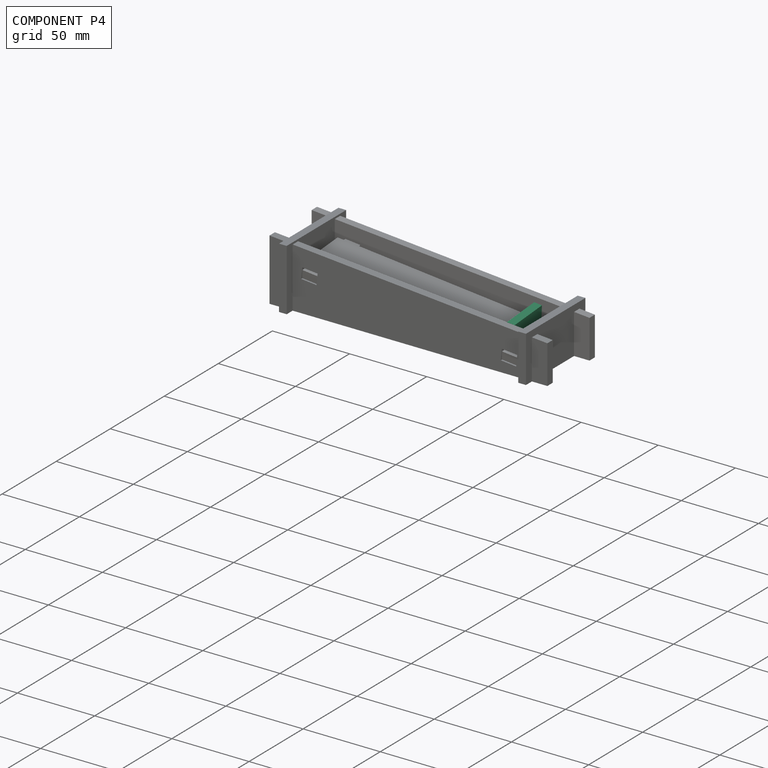
[diagram: component P4 — assembled]
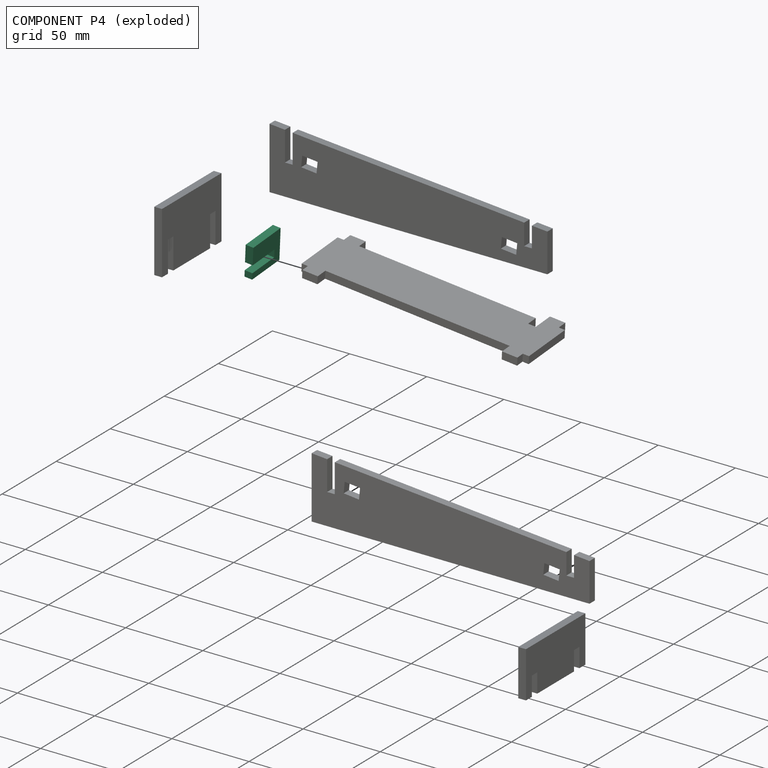
[diagram: component P4 — exploded]
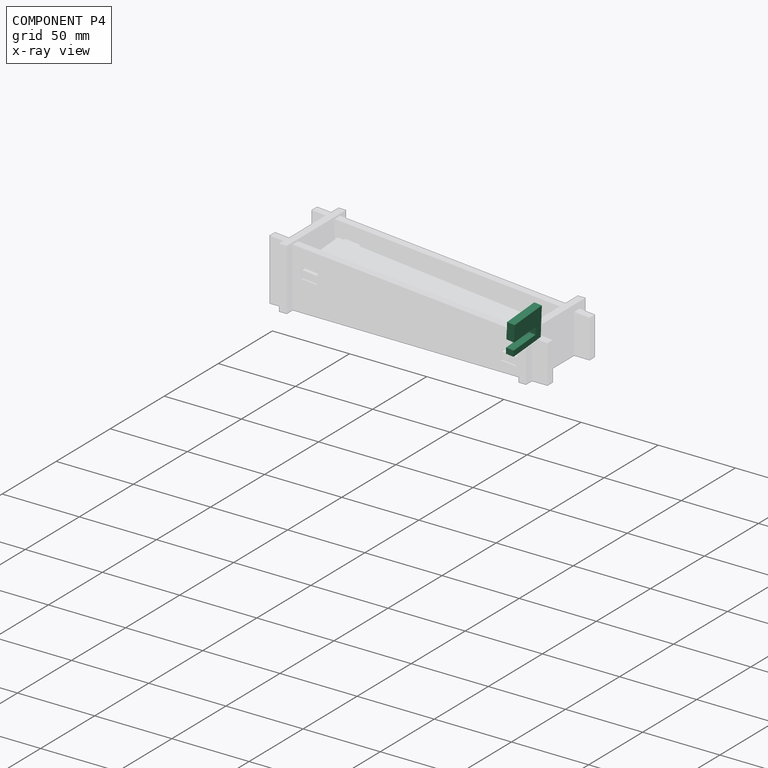
[diagram: component P4 — x-ray view]
COMPONENT P4 — recipe-attached (CADFS 00942264, mesh-verified: the recipe's output STEP matches this component's geometry to below the mesh-comparison resolution (tessellation chordal tolerance ~0.0486 mm)).
Held by: FASTENED mate "Fastened 4" to P0.
Construction recipe (FeatureScript — the CAD program that rebuilds this solid; sketch coordinates are in the units given by the * unit suffixes, e.g. mm):

FeatureScript 1540;
import(path : "onshape/std/geometry.fs", version : "1540.0");
import(path : "onshape/std/common.fs", version : "1540.0");
const mm = millimeter;
const VERTEX = EntityType.VERTEX;
const EDGE = EntityType.EDGE;
const FACE = EntityType.FACE;
const BODY = EntityType.BODY;
function v(x, y){return vector(x, y);}
function OD(order){return orderDisambiguation(order);}
function OSD(set){return originalSetDisambiguation(set);}
function TD(topology){return topologyDisambiguation(topology);}
function TDD(query){return trueDependencyDisambiguation(query);}
function sQuery(a, b, c) {return sketchEntityQuery(a, b, c);}

annotation { "Feature Type Name" : "Feature", "Feature Type Description" : "" }
export const myFeature = defineFeature(function(context is Context, id is Id, definition is map)
    precondition{}
    {
        {
            var Q0;
            Q0=qCreatedBy(makeId("Top.planeOp"),FACE);
            var sketch = newSketch(context, id + "F0", { "sketchPlane" : qUnion([Q0])});
            skLineSegment(sketch, "E0.bottom", {"start": v(10, -12.5) * mm, "end": v(-10, -12.5) * mm});
            skLineSegment(sketch, "E0.top", {"start": v(10, 12.5) * mm, "end": v(-10, 12.5) * mm});
            skLineSegment(sketch, "E0.left", {"start": v(10, -12.5) * mm, "end": v(10, 12.5) * mm});
            skLineSegment(sketch, "E0.right", {"start": v(-10, -12.5) * mm, "end": v(-10, 12.5) * mm});
            skPoint(sketch, "E0.middle", {"position": v(0, 0) * mm});
            skSolve(sketch);
        }
        {
            var Q0;
            Q0=makeQuery(id+"F0.imprint","IMPRINT",FACE,{"disambiguationData":[TD([[makeQuery(id+"F0.imprint","IMPRINT",EDGE,{"derivedFrom":sQuery(id+"F0.wireOp",EDGE,"E0.bottom")}),-1.0]])]});
            extrude(context, id + "F1", {"entities" : qUnion([Q0]), "depth" : 5 * mm, "offsetDistance" : 25 * mm});
        }
        {
            var Q0;
            Q0=makeQuery(id+"F1.opExtrude","CAP_FACE",FACE,{"disambiguationData":[OSD([sQuery(id+"F0.wireOp",EDGE,"E0.bottom"),sQuery(id+"F0.wireOp",EDGE,"E0.top"),sQuery(id+"F0.wireOp",EDGE,"E0.left"),sQuery(id+"F0.wireOp",EDGE,"E0.right")])],"isStart":false});
            var sketch = newSketch(context, id + "F2", { "sketchPlane" : qUnion([Q0])});
            skLineSegment(sketch, "E1.bottom", {"start": v(-1, -12.5) * mm, "end": v(-6, -12.5) * mm});
            skLineSegment(sketch, "E1.top", {"start": v(-1, 7.5) * mm, "end": v(-6, 7.5) * mm});
            skLineSegment(sketch, "E1.left", {"start": v(-1, -12.5) * mm, "end": v(-1, 7.5) * mm});
            skLineSegment(sketch, "E1.right", {"start": v(-6, -12.5) * mm, "end": v(-6, 7.5) * mm});
            skPoint(sketch, "E1.middle", {"position": v(0, -2.5) * mm});
            skSolve(sketch);
        }
        {
            var Q0;
            Q0=makeQuery(id+"F2.imprint","IMPRINT",FACE,{"disambiguationData":[TD([[makeQuery(id+"F2.imprint","IMPRINT",EDGE,{"derivedFrom":sQuery(id+"F2.wireOp",EDGE,"E1.bottom")}),-1.0]])]});
            extrude(context, id + "F3", {"entities" : qUnion([Q0]), "operationType" : NewBodyOperationType.REMOVE, "oppositeDirection" : true, "depth" : 25 * mm, "offsetDistance" : 25 * mm});
        }
    });
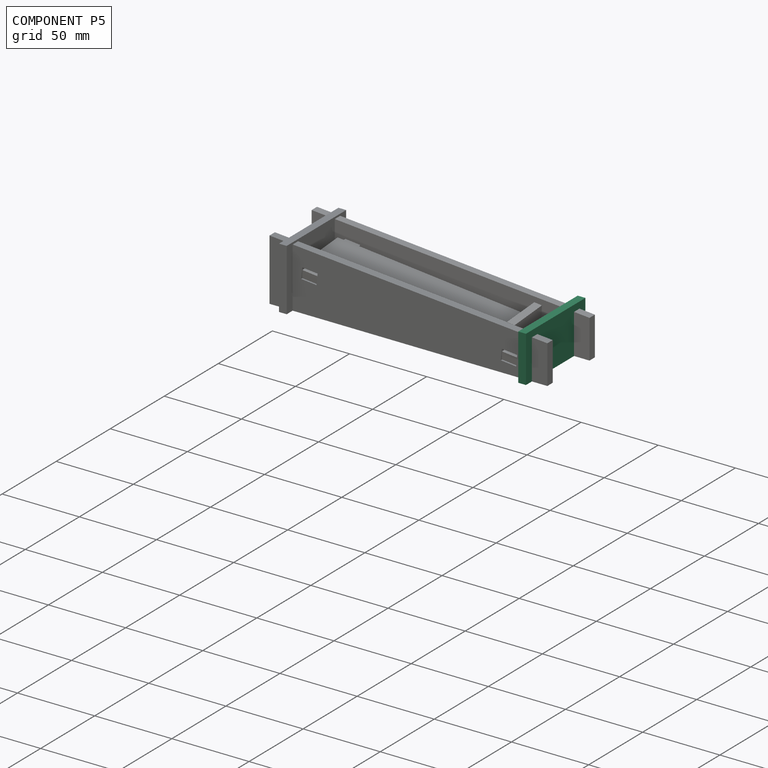
[diagram: component P5 — assembled]
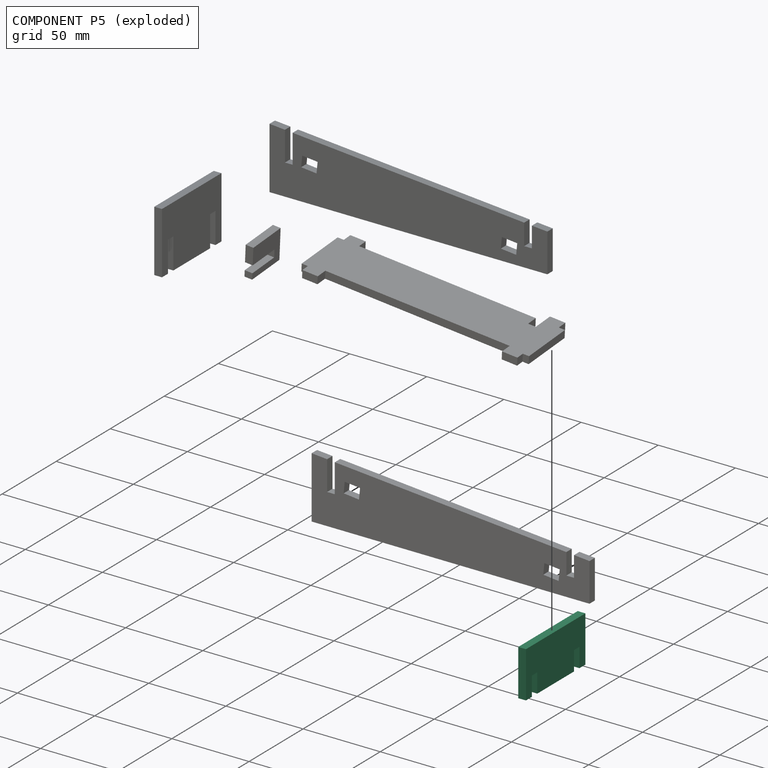
[diagram: component P5 — exploded]
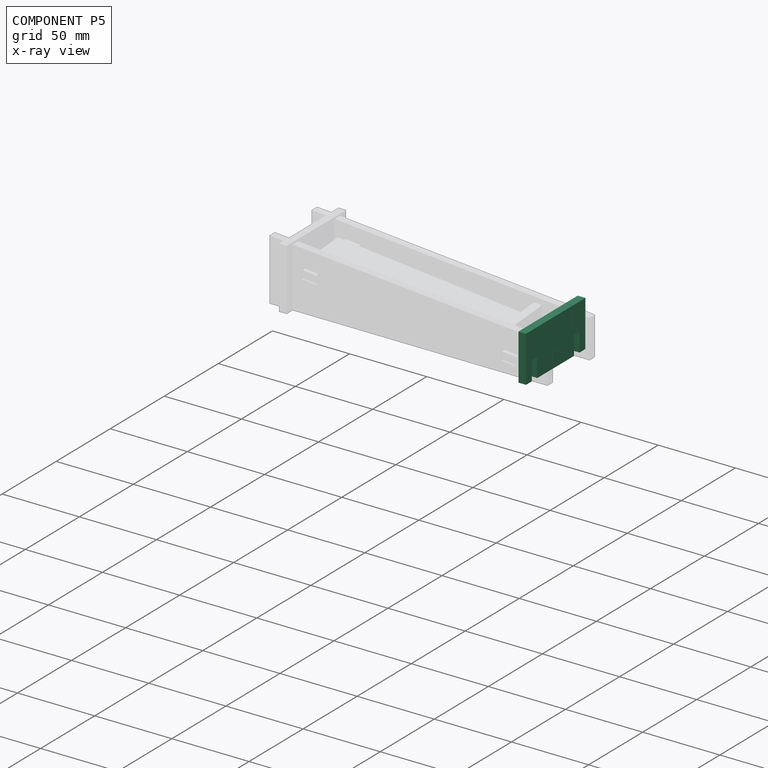
[diagram: component P5 — x-ray view]
COMPONENT P5 — recipe-attached (CADFS 00942263, mesh-verified: the recipe's output STEP matches this component's geometry to below the mesh-comparison resolution (tessellation chordal tolerance ~0.0943 mm)).
Held by: FASTENED mate "Fastened 3" to P2.
Construction recipe (FeatureScript — the CAD program that rebuilds this solid; sketch coordinates are in the units given by the * unit suffixes, e.g. mm):

FeatureScript 1540;
import(path : "onshape/std/geometry.fs", version : "1540.0");
import(path : "onshape/std/common.fs", version : "1540.0");
const mm = millimeter;
const VERTEX = EntityType.VERTEX;
const EDGE = EntityType.EDGE;
const FACE = EntityType.FACE;
const BODY = EntityType.BODY;
function v(x, y){return vector(x, y);}
function OD(order){return orderDisambiguation(order);}
function OSD(set){return originalSetDisambiguation(set);}
function TD(topology){return topologyDisambiguation(topology);}
function TDD(query){return trueDependencyDisambiguation(query);}
function sQuery(a, b, c) {return sketchEntityQuery(a, b, c);}

annotation { "Feature Type Name" : "Feature", "Feature Type Description" : "" }
export const myFeature = defineFeature(function(context is Context, id is Id, definition is map)
    precondition{}
    {
        {
            var Q0;
            Q0=qCreatedBy(makeId("Top.planeOp"),FACE);
            var sketch = newSketch(context, id + "F0", { "sketchPlane" : qUnion([Q0])});
            skLineSegment(sketch, "E0.bottom", {"start": v(-27.5, 15) * mm, "end": v(27.5, 15) * mm});
            skLineSegment(sketch, "E0.top", {"start": v(-27.5, -15) * mm, "end": v(27.5, -15) * mm});
            skLineSegment(sketch, "E0.left", {"start": v(-27.5, 15) * mm, "end": v(-27.5, -15) * mm});
            skLineSegment(sketch, "E0.right", {"start": v(27.5, 15) * mm, "end": v(27.5, -15) * mm});
            skSolve(sketch);
        }
        {
            var Q0;
            Q0=makeQuery(id+"F0.imprint","IMPRINT",FACE,{"disambiguationData":[TD([[makeQuery(id+"F0.imprint","IMPRINT",EDGE,{"derivedFrom":sQuery(id+"F0.wireOp",EDGE,"E0.bottom")}),-1.0]])]});
            extrude(context, id + "F1", {"entities" : qUnion([Q0]), "depth" : 5 * mm, "offsetDistance" : 25 * mm});
        }
        {
            var Q0;
            Q0=makeQuery(id+"F1.opExtrude","CAP_FACE",FACE,{"disambiguationData":[OSD([sQuery(id+"F0.wireOp",EDGE,"E0.bottom"),sQuery(id+"F0.wireOp",EDGE,"E0.top"),sQuery(id+"F0.wireOp",EDGE,"E0.left"),sQuery(id+"F0.wireOp",EDGE,"E0.right")])],"isStart":false});
            var sketch = newSketch(context, id + "F2", { "sketchPlane" : qUnion([Q0])});
            skLineSegment(sketch, "E1.bottom", {"start": v(-22, -15) * mm, "end": v(-17, -15) * mm});
            skLineSegment(sketch, "E1.top", {"start": v(-22, -2.5) * mm, "end": v(-17, -2.5) * mm});
            skLineSegment(sketch, "E1.left", {"start": v(-22, -15) * mm, "end": v(-22, -2.5) * mm});
            skLineSegment(sketch, "E1.right", {"start": v(-17, -15) * mm, "end": v(-17, -2.5) * mm});
            skLineSegment(sketch, "E2.bottom", {"start": v(17, -15) * mm, "end": v(22, -15) * mm});
            skLineSegment(sketch, "E2.top", {"start": v(17, -2.5) * mm, "end": v(22, -2.5) * mm});
            skLineSegment(sketch, "E2.left", {"start": v(17, -15) * mm, "end": v(17, -2.5) * mm});
            skLineSegment(sketch, "E2.right", {"start": v(22, -15) * mm, "end": v(22, -2.5) * mm});
            skSolve(sketch);
        }
        {
            var Q0;
            Q0=makeQuery(id+"F2.imprint","IMPRINT",FACE,{"disambiguationData":[TD([[makeQuery(id+"F2.imprint","IMPRINT",EDGE,{"derivedFrom":sQuery(id+"F2.wireOp",EDGE,"E1.bottom")}),1.0]])]});
            var Q1;
            Q1=makeQuery(id+"F2.imprint","IMPRINT",FACE,{"disambiguationData":[TD([[makeQuery(id+"F2.imprint","IMPRINT",EDGE,{"derivedFrom":sQuery(id+"F2.wireOp",EDGE,"E2.bottom")}),1.0]])]});
            extrude(context, id + "F3", {"entities" : qUnion([Q0, Q1]), "operationType" : NewBodyOperationType.REMOVE, "oppositeDirection" : true, "depth" : 25 * mm, "offsetDistance" : 25 * mm});
        }
    });
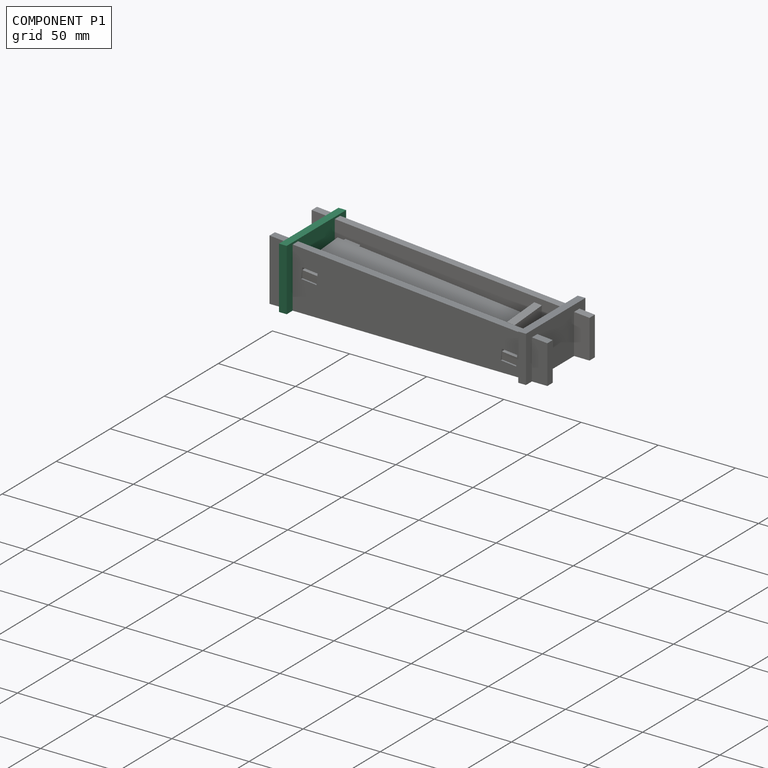
[diagram: component P1 — assembled]
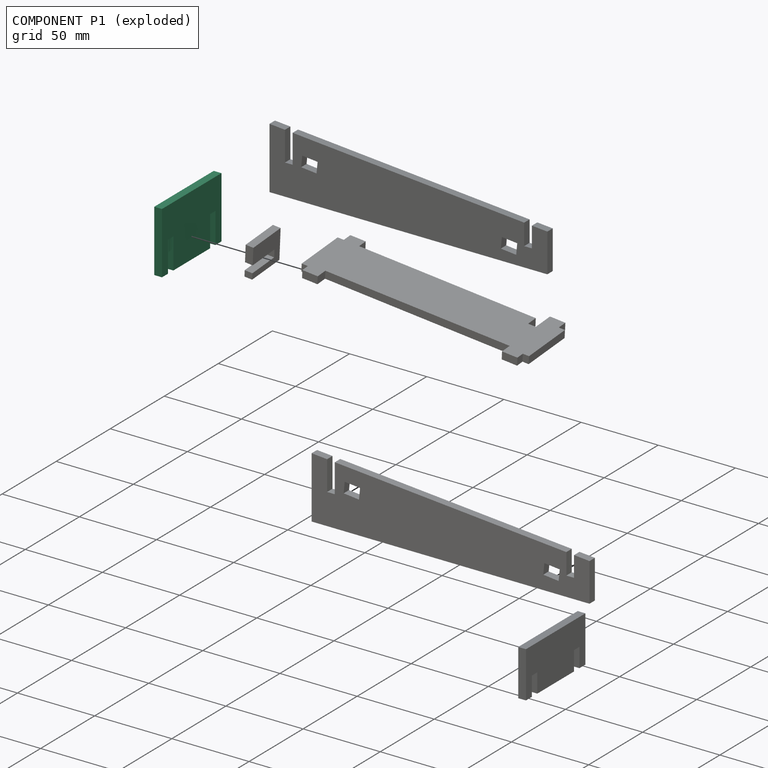
[diagram: component P1 — exploded]
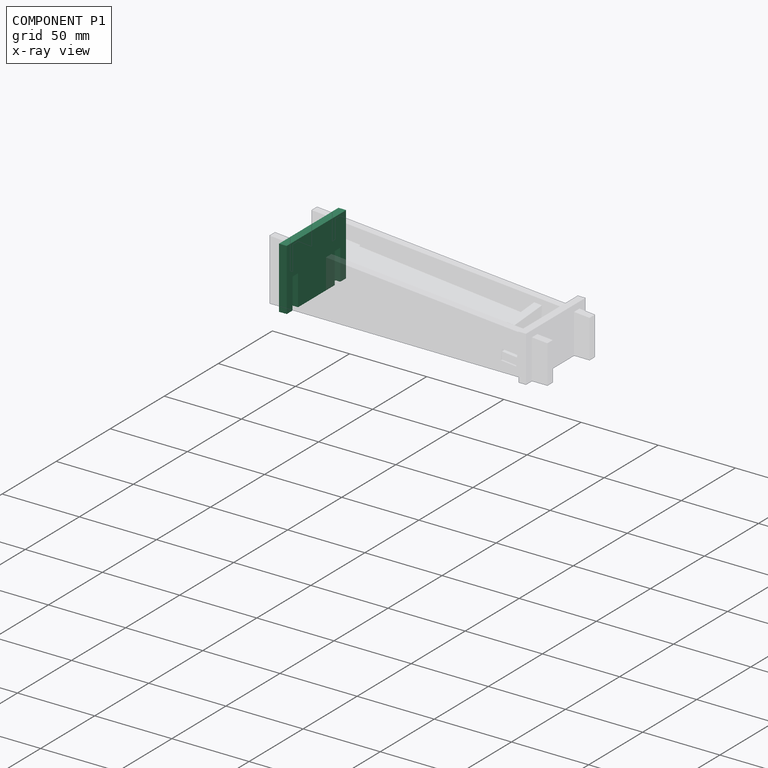
[diagram: component P1 — x-ray view]
COMPONENT P1 — recipe-attached (CADFS 00942262, mesh-verified: the recipe's output STEP matches this component's geometry to below the mesh-comparison resolution (tessellation chordal tolerance ~0.102 mm)).
Held by: FASTENED mate "Fastened 1" to P3; FASTENED mate "Fastened 2" to P2.
Construction recipe (FeatureScript — the CAD program that rebuilds this solid; sketch coordinates are in the units given by the * unit suffixes, e.g. mm):

FeatureScript 1540;
import(path : "onshape/std/geometry.fs", version : "1540.0");
import(path : "onshape/std/common.fs", version : "1540.0");
const mm = millimeter;
const VERTEX = EntityType.VERTEX;
const EDGE = EntityType.EDGE;
const FACE = EntityType.FACE;
const BODY = EntityType.BODY;
function v(x, y){return vector(x, y);}
function OD(order){return orderDisambiguation(order);}
function OSD(set){return originalSetDisambiguation(set);}
function TD(topology){return topologyDisambiguation(topology);}
function TDD(query){return trueDependencyDisambiguation(query);}
function sQuery(a, b, c) {return sketchEntityQuery(a, b, c);}

annotation { "Feature Type Name" : "Feature", "Feature Type Description" : "" }
export const myFeature = defineFeature(function(context is Context, id is Id, definition is map)
    precondition{}
    {
        {
            var Q0;
            Q0=qCreatedBy(makeId("Top.planeOp"),FACE);
            var sketch = newSketch(context, id + "F0", { "sketchPlane" : qUnion([Q0])});
            skLineSegment(sketch, "E0.bottom", {"start": v(-27.5, 20) * mm, "end": v(27.5, 20) * mm});
            skLineSegment(sketch, "E0.top", {"start": v(-27.5, -20) * mm, "end": v(27.5, -20) * mm});
            skLineSegment(sketch, "E0.left", {"start": v(-27.5, 20) * mm, "end": v(-27.5, -20) * mm});
            skLineSegment(sketch, "E0.right", {"start": v(27.5, 20) * mm, "end": v(27.5, -20) * mm});
            skSolve(sketch);
        }
        {
            var Q0;
            Q0=makeQuery(id+"F0.imprint","IMPRINT",FACE,{"disambiguationData":[TD([[makeQuery(id+"F0.imprint","IMPRINT",EDGE,{"derivedFrom":sQuery(id+"F0.wireOp",EDGE,"E0.bottom")}),-1.0]])]});
            extrude(context, id + "F1", {"entities" : qUnion([Q0]), "depth" : 5 * mm, "offsetDistance" : 25 * mm});
        }
        {
            var Q0;
            Q0=makeQuery(id+"F1.opExtrude","CAP_FACE",FACE,{"disambiguationData":[OSD([sQuery(id+"F0.wireOp",EDGE,"E0.bottom"),sQuery(id+"F0.wireOp",EDGE,"E0.top"),sQuery(id+"F0.wireOp",EDGE,"E0.left"),sQuery(id+"F0.wireOp",EDGE,"E0.right")])],"isStart":false});
            var sketch = newSketch(context, id + "F2", { "sketchPlane" : qUnion([Q0])});
            skLineSegment(sketch, "E1.bottom", {"start": v(-22, -20) * mm, "end": v(-17, -20) * mm});
            skLineSegment(sketch, "E1.top", {"start": v(-22, 0) * mm, "end": v(-17, 0) * mm});
            skLineSegment(sketch, "E1.left", {"start": v(-22, -20) * mm, "end": v(-22, 0) * mm});
            skLineSegment(sketch, "E1.right", {"start": v(-17, -20) * mm, "end": v(-17, 0) * mm});
            skLineSegment(sketch, "E2.bottom", {"start": v(17, -20) * mm, "end": v(22, -20) * mm});
            skLineSegment(sketch, "E2.top", {"start": v(17, 0) * mm, "end": v(22, 0) * mm});
            skLineSegment(sketch, "E2.left", {"start": v(17, -20) * mm, "end": v(17, 0) * mm});
            skLineSegment(sketch, "E2.right", {"start": v(22, -20) * mm, "end": v(22, 0) * mm});
            skSolve(sketch);
        }
        {
            var Q0;
            Q0=makeQuery(id+"F2.imprint","IMPRINT",FACE,{"disambiguationData":[TD([[makeQuery(id+"F2.imprint","IMPRINT",EDGE,{"derivedFrom":sQuery(id+"F2.wireOp",EDGE,"E1.bottom")}),1.0]])]});
            var Q1;
            Q1=makeQuery(id+"F2.imprint","IMPRINT",FACE,{"disambiguationData":[TD([[makeQuery(id+"F2.imprint","IMPRINT",EDGE,{"derivedFrom":sQuery(id+"F2.wireOp",EDGE,"E2.bottom")}),1.0]])]});
            extrude(context, id + "F3", {"entities" : qUnion([Q0, Q1]), "operationType" : NewBodyOperationType.REMOVE, "oppositeDirection" : true, "depth" : 25 * mm, "offsetDistance" : 25 * mm});
        }
    });
PROVENANCE & LICENSES
Assembly (occurrences, transforms, mates, per-part STEP geometry): AutoMate dataset, Zenodo record 7776208, CC0.
Construction recipes: CADFS (HuggingFace VladPyatov/CADFS, CC-BY-4.0, layered over the ABC dataset), FeatureScript reconstruction programs keyed by ABC model id.
Join: ABC meta listings map ABC model id -> Onshape documentId; within a shared document, parts are matched by geometric signature (bounding-box dims + volume at 0.1% relative tolerance, exact B-rep face/solid counts).
Verification: 6 of this assembly's 6 components carry a recipe attachment, and every attachment is mesh-verified: the CADFS STEP and the AutoMate member STEP were compared as meshes in their shared local frame (symmetric sampled-point-to-mesh distance); worst across the 6 attachments: below the mesh-comparison resolution (tessellation chordal tolerance ~0.277 mm) on a 184 mm part.
Renders: orthographic iso camera (az 35 / el 25); the floor grid conveys scale (grid pitch printed in each image; no ruler). In the exploded view each component is displaced by its stored offset vector: the offsets alone carry the explosion direction (mate normal/axis signs are not orientation cues and do not encode it), and separation distances are assigned per mate-chain, not proportionally to assembly-order depth.
